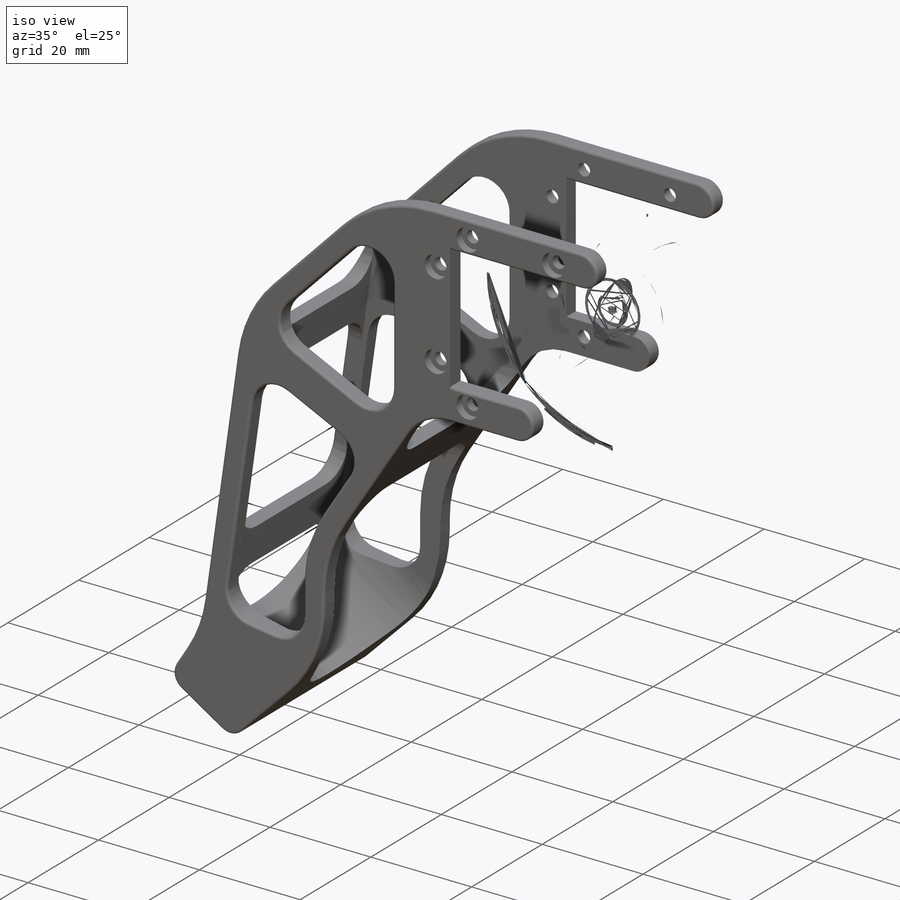
[diagram: iso view]
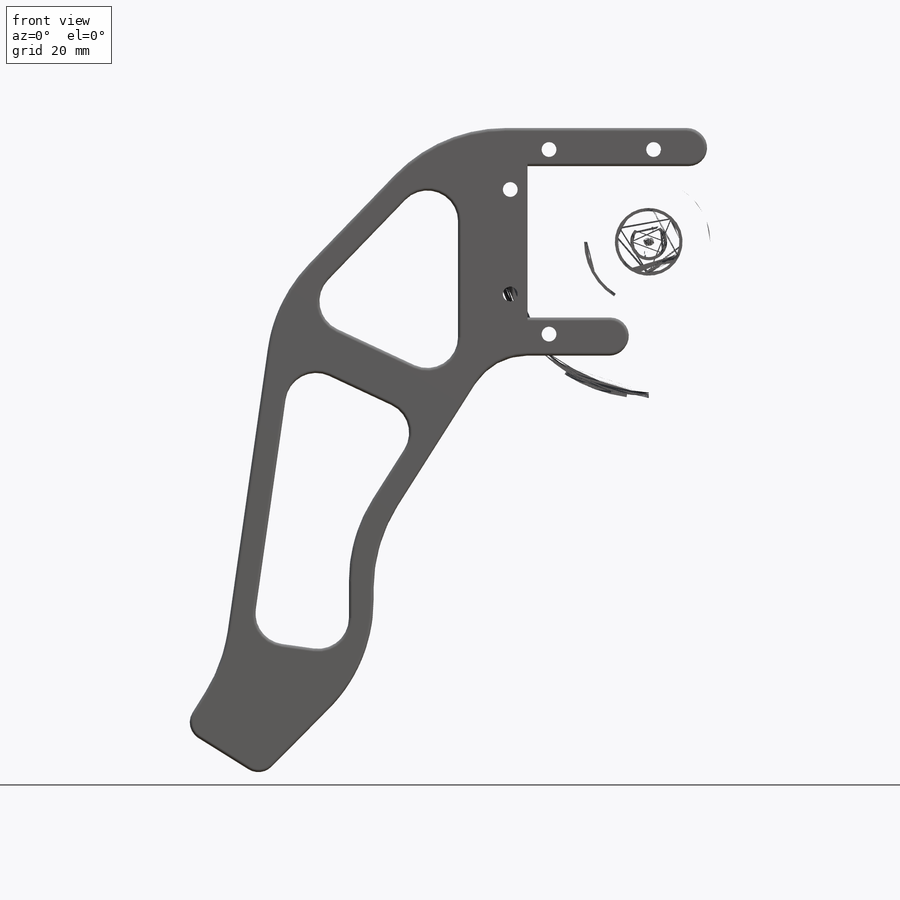
[diagram: front view]
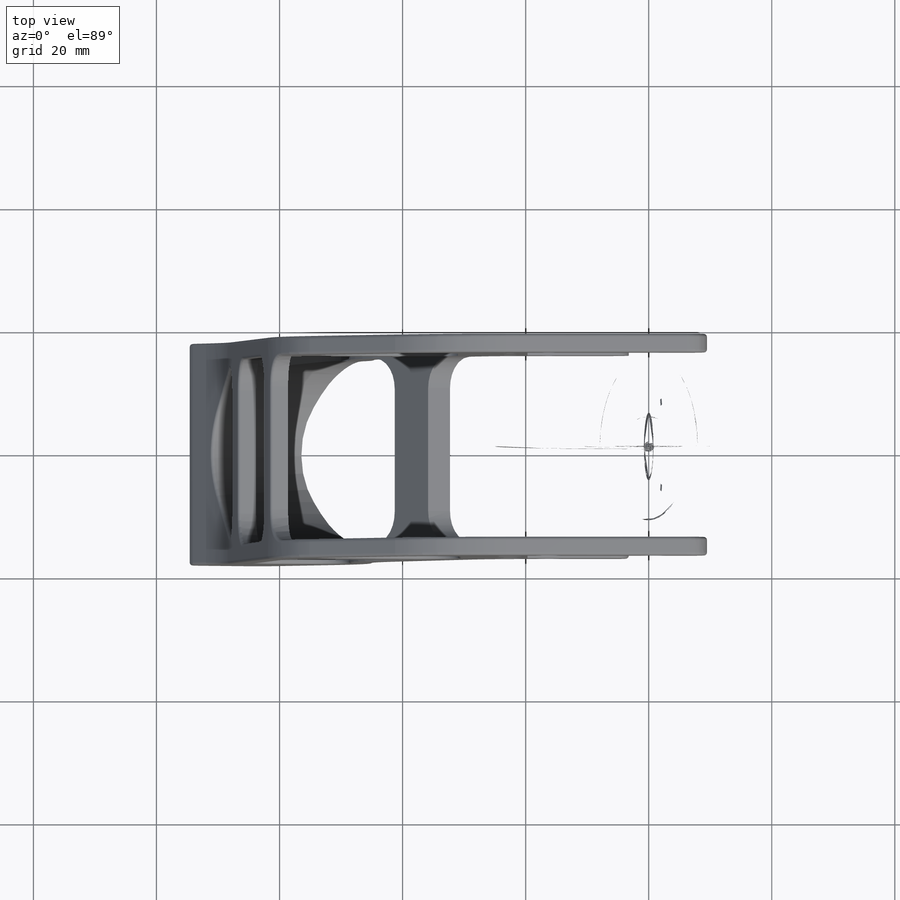
[diagram: top view]
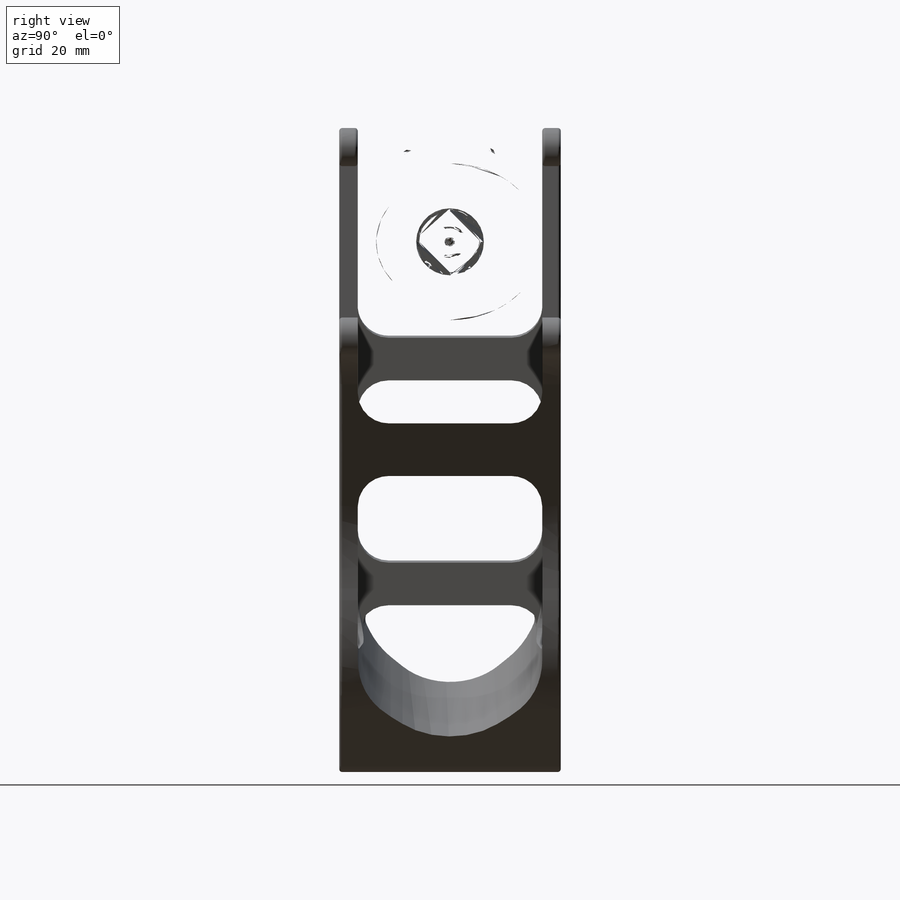
[diagram: right view]
SOLIDWORKS PART (.sldprt)
format: sldprt  version: not decoded by parser v0  size: 2,345,984 bytes
history: native  units: mm
features: sketch x14, fillet x13, cut_extrude x5, hole x2, chamfer x2, material x1, extrude x1, shell x1, mirror x1 (+12 scaffold rows collapsed)
feature tree (52):
  scaffold x12  (default folders/planes/origin — collapsed)
  material  "ABS"
  sketch  "Sketch1"  dims[D1=50.0mm D2=37.0mm D3=38.5mm D4=20.0mm D5=6.0mm]
  sketch  "Sketch2"  dims[c1.D1=8.0mm c1.D2=8.0mm c1.D3=8.0mm c1.D4=8.0mm c2.D3=8.0mm c2.D4=6.5mm c2.D5=13.5mm c2.D6=8.0mm c2.D7=36.0mm]
  sketch  "Sketch3"  dims[c1.D1=15.0mm c1.D2=63.0mm c1.D3=87.0mm c1.D4=12.0mm c2.D4=32.0deg]
  sketch  "Sketch10"  dims[D1=8.5mm D2=35.8mm D3=17.0mm D4=12.5mm D5=15.0mm]
  sketch  "Sketch4"
  extrude  "Boss-Extrude1"  Depth=19mm
  shell  "Shell1"  Thickness=3mm
  sketch  "Sketch5"
  cut_extrude  "Cut-Extrude1"  [1 undecoded]
  sketch  "Sketch6"  dims[D1=11.0mm D2=11.0mm]
  cut_extrude  "Cut-Extrude2"  [1 undecoded]
  sketch  "Sketch7"  dims[D1=4.0mm D2=4.0mm]
  cut_extrude  "Cut-Extrude3"  [1 undecoded]
  hole  "CBORE for M2 Hex Socket Head Cap Screw1"  Diameter=2.4mm Depth=19mm
  sketch  "Sketch9"
  sketch  "Sketch8"  dims[hole-wizard template sketch: 42 standard entries collapsed; hole parameters kept: c12.Thru Hole Depth=19.0mm c12.C'Bore Dia.=4.4mm c12.C'Bore Depth=1.5mm]
  hole  "CBORE for M2 Hex Socket Head Cap Screw2"  Diameter=2.4mm Depth=18mm
  sketch  "Sketch12"
  sketch  "Sketch11"  dims[hole-wizard template sketch: 42 standard entries collapsed; hole parameters kept: c12.Thru Hole Depth=18.0mm c12.C'Bore Dia.=4.4mm c12.C'Bore Depth=1.5mm]
  sketch  "Sketch13"  dims[c1.D1=5.0mm c1.D2=10.0mm c1.D3=~14.786247mm c2.D3=45.0deg c2.D4=15.0mm c3.D4=45.0deg c4.D4=15.0mm c5.D4=22.5deg c5.D5=~14.824383mm c6.D5=45.0deg c7.D5=10.0mm c7.D1=10.0mm c7.D3=6.0mm c7.D4=3.0mm c8.D1=7.0mm c8.D3=7.0mm]
  cut_extrude  "Cut-Extrude4"  [1 undecoded]
  sketch  "Sketch14"  dims[D1=9.8mm]
  cut_extrude  "Cut-Extrude5"  Depth=1mm
  chamfer  "Chamfer1"  Distance=5mm Angle=50deg
  chamfer  "Chamfer2"  Distance=15mm Angle=50deg
  fillet  "Fillet1"  Radius=5mm
  fillet  "Fillet2"  Radius=25mm
  fillet  "Fillet3"  Radius=3mm
  fillet  "Fillet4"  Radius=10mm
  fillet  "Fillet7"  Radius=0.8mm
  fillet  "Fillet5"  Radius=3mm
  fillet  "Fillet6"  Radius=3mm
  fillet  "Fillet12"  Radius=5mm
  fillet  "Fillet13"  Radius=15mm
  fillet  "Fillet14"  Radius=2mm
  mirror  "Mirror2"
  fillet  "Fillet17"  Radius=12mm
  fillet  "Fillet10"  Radius=0.5mm
  fillet  "Fillet18"  Radius=0.5mm
decode coverage: 30 of 39 modeling features carry decoded parameters
note: ~ marks probable driven/reference dimensions
note: 4 parameter values undecoded
summary: no parameter record found for 4 features
note: suppression state not decoded; provenance and decode notes live in map.json
